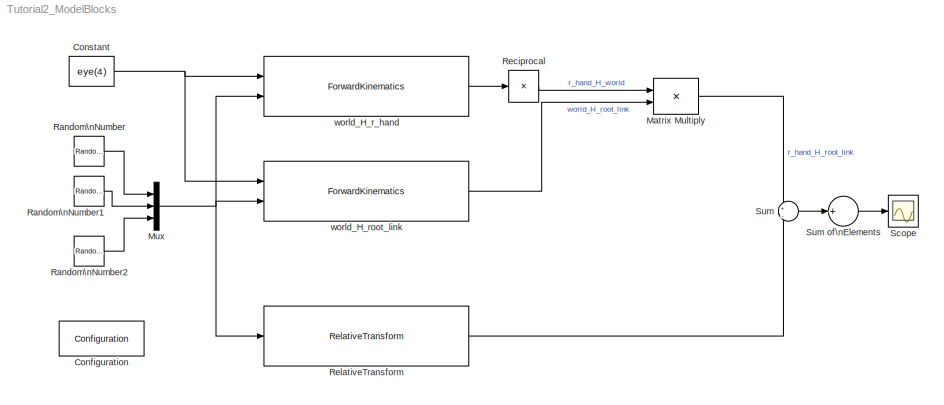
MODEL Tutorial2_ModelBlocks
KIND model
BLOCK [Reference] Configuration  REF=WBToolboxLibrary/Utilities/Configuration
  ConfigObject = 'WBTConfigRobot'
  ConfigSource = Mask
  ControlBoardsNames = {'doesnotmatter'}
  ControlledJoints = {'r_elbow','r_shoulder_pitch','torso_roll'}
  GravityVector = [0,0,-9.81]
  LocalName = 'doesnotmatter'
  Ports = []
  RobotName = 'doesnotmatter'
  SID = 1
  SourceBlock = WBToolboxLibrary/Utilities/Configuration
  SourceProductName = WholeBodyToolbox
  UrdfFile = 'model.urdf'
BLOCK [Constant] Constant
  SID = 5
  Value = eye(4)
BLOCK [Product] Matrix Multiply
  InputSameDT = off
  Multiplication = Matrix(*)
  OutDataTypeStr = Inherit: Inherit via internal rule
  Ports = [2, 1]
  RndMeth = Floor
  SID = 9
  SaturateOnIntegerOverflow = off
BLOCK [Mux] Mux
  DisplayOption = bar
  Inputs = 3
  Ports = [3, 1]
  SID = 20
BLOCK [RandomNumber] Random\nNumber
  SID = 16
  SampleTime = 0.1
  Variance = 20 / 180 * pi
BLOCK [RandomNumber] Random\nNumber1
  SID = 17
  SampleTime = 0.1
  Variance = 20 / 180 * pi
BLOCK [RandomNumber] Random\nNumber2
  SID = 18
  SampleTime = 0.1
  Variance = 20 / 180 * pi
BLOCK [Product] Reciprocal
  InputSameDT = off
  Inputs = /
  Multiplication = Matrix(*)
  OutDataTypeStr = Inherit: Inherit via internal rule
  Ports = [1, 1]
  RndMeth = Floor
  SID = 11
  SaturateOnIntegerOverflow = off
BLOCK [Reference] RelativeTransform  REF=WBToolboxLibrary/Model/Kinematics/RelativeTransform
  Ports = [1, 1]
  SID = 3
  SourceBlock = WBToolboxLibrary/Model/Kinematics/RelativeTransform
  SourceProductName = WholeBodyToolbox
  SourceType = RelativeTransform
  frame1 = 'r_hand'
  frame2 = 'root_link'
BLOCK [Scope] Scope
  Floating = off
  NumInputPorts = 1
  Ports = [1]
  SID = 12
  ScopeSpecificationString = Simulink.scopes.TimeScopeBlockCfg('CurrentConfiguration', extmgr.ConfigurationSet(extmgr.Configuration('Core','General UI',true),extmgr.Configuration('Core','Source UI',true),extmgr.Configuration('Sources','WiredSimulink',true),extmgr.Configuration('Visuals','Time Domain',true,'SerializedDisplays',{struct('MinYLimReal','-0.0000000000000015','MaxYLimReal','0.000000000000001','YLabelReal','','MinYLi...<+1502ch>
BLOCK [Sum] Sum
  IconShape = round
  InputSameDT = off
  Inputs = +|-
  OutDataTypeStr = Inherit: Inherit via internal rule
  Ports = [2, 1]
  SID = 8
  SaturateOnIntegerOverflow = off
BLOCK [Sum] Sum of\nElements
  InputSameDT = off
  Inputs = +
  OutDataTypeStr = Inherit: Inherit via internal rule
  Ports = [1, 1]
  SID = 15
  SaturateOnIntegerOverflow = off
BLOCK [Reference] world_H_r_hand  REF=WBToolboxLibrary/Model/Kinematics/ForwardKinematics
  Ports = [2, 1]
  SID = 4
  SourceBlock = WBToolboxLibrary/Model/Kinematics/ForwardKinematics
  SourceProductName = WholeBodyToolbox
  SourceType = ForwardKinematics
  frameName = 'r_hand'
BLOCK [Reference] world_H_root_link  REF=WBToolboxLibrary/Model/Kinematics/ForwardKinematics
  Ports = [2, 1]
  SID = 2
  SourceBlock = WBToolboxLibrary/Model/Kinematics/ForwardKinematics
  SourceProductName = WholeBodyToolbox
  SourceType = ForwardKinematics
  frameName = 'root_link'
NET Constant:1 -> world_H_r_hand:1, world_H_root_link:1
LINE Matrix Multiply:1 -> Sum:1
NET Mux:1 -> RelativeTransform:1, world_H_r_hand:2, world_H_root_link:2
LINE Random\nNumber1:1 -> Mux:2
LINE Random\nNumber2:1 -> Mux:3
LINE Random\nNumber:1 -> Mux:1
LINE Reciprocal:1 -> Matrix Multiply:1
LINE RelativeTransform:1 -> Sum:2
LINE Sum of\nElements:1 -> Scope:1
LINE Sum:1 -> Sum of\nElements:1
LINE world_H_r_hand:1 -> Reciprocal:1
LINE world_H_root_link:1 -> Matrix Multiply:2
note: NET lines group one-source signal fan-out (src -> all destinations, sorted); 1:1 wires keep LINE
